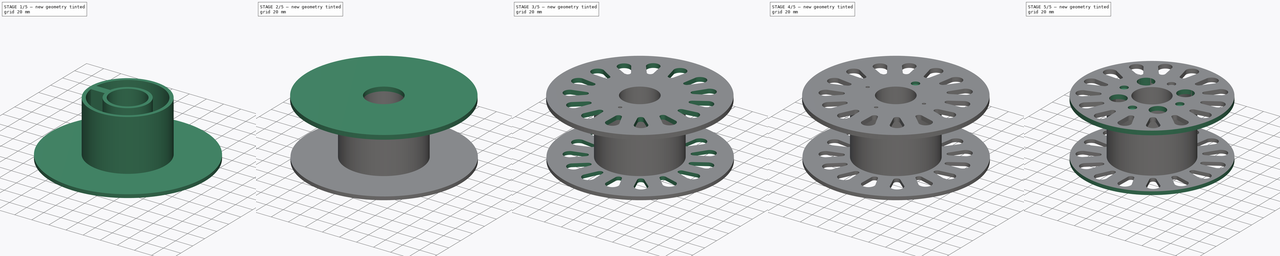
[diagram: build sequence overview — one tinted view per stage of 5, left to right]
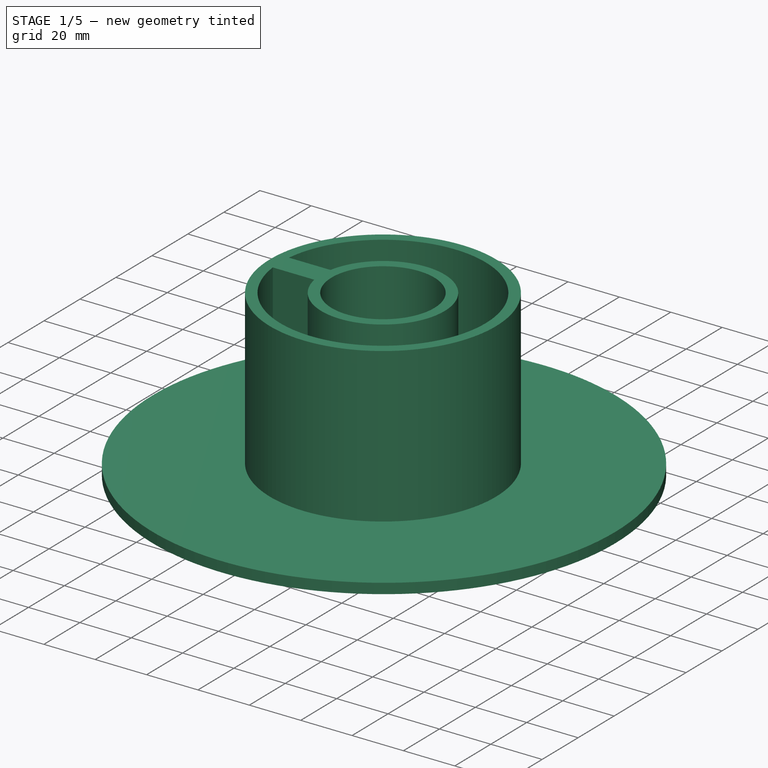
[diagram: stage 1 of 5 — iso view after this stage's code; geometry added in this stage tinted green]
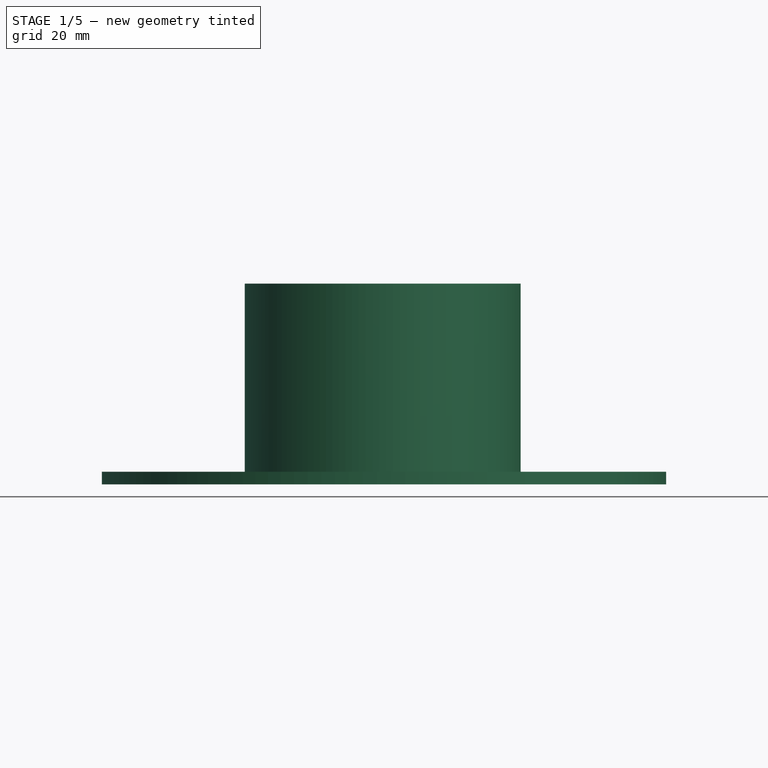
[diagram: stage 1 of 5 — front view after this stage's code; geometry added in this stage tinted green]
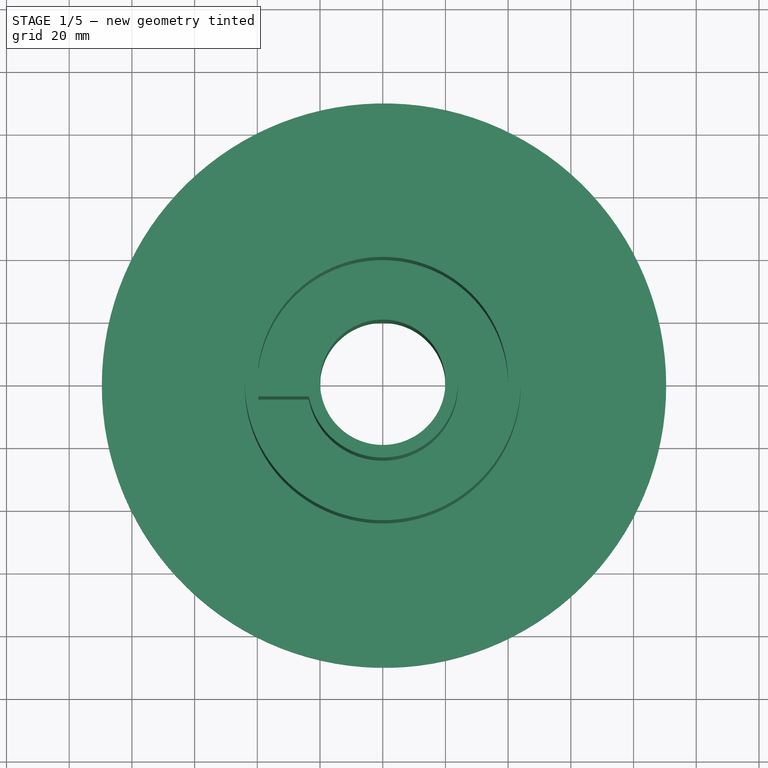
[diagram: stage 1 of 5 — top view after this stage's code; geometry added in this stage tinted green]
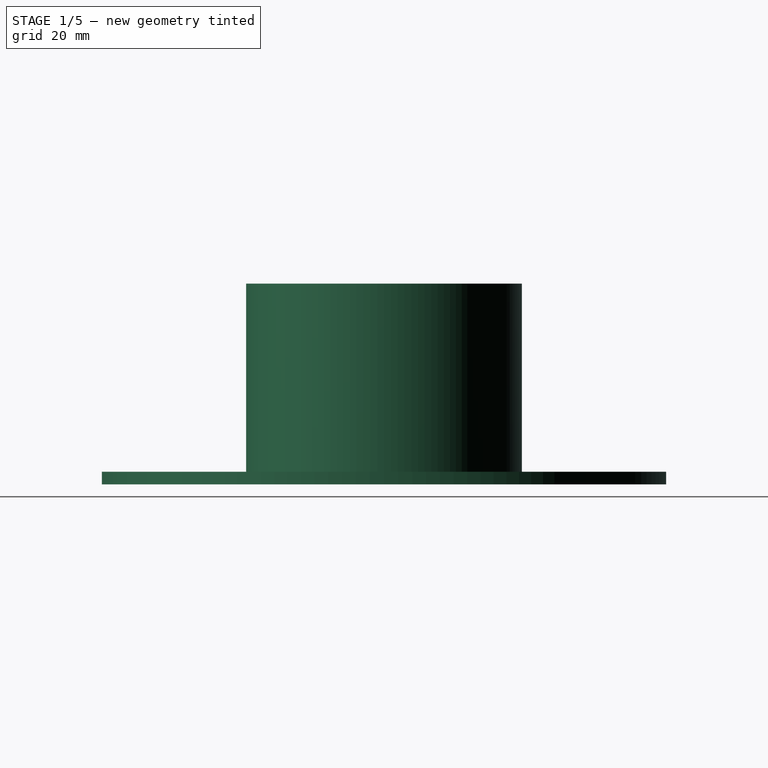
[diagram: stage 1 of 5 — right view after this stage's code; geometry added in this stage tinted green]
FCSTD DOCUMENT  (FreeCAD 0.16R6703 (Git))
Label: Spool Holder 60
License: FreeArt
LicenseURL: http://artlibre.org/licence/lal
objects: Sketcher::SketchObject×12, PartDesign::PolarPattern×7, PartDesign::Pocket×7, PartDesign::Pad×5
note: 43 computed .brp shape members not serialized (recipe doc carries the construction recipe); baked Part::Feature solids carry a one-line shape summary decoded from their .brp

FEATURE [Sketcher::SketchObject] Sketch
  sketch-geometry (2):
    g0: Circle CenterX=0 CenterY=0 CenterZ=0 NormalX=0 NormalY=0 NormalZ=1 Radius=20
    g1: Circle CenterX=0.405422 CenterY=0 CenterZ=0 NormalX=0 NormalY=0 NormalZ=1 Radius=90
  constraints (4):
    c: Coincident(g0,g-1)
    c: PointOnObject(g1,g-1)
    c: Radius(g1) = 90
    c: Radius(g0) = 20
FEATURE [PartDesign::Pad] Pad
  Length = 4
  Length2 = 100
  Sketch = -> Sketch
  Type = 0
FEATURE [Sketcher::SketchObject] Sketch001
  Placement = pos=(0,0,4) rot=(0,0,1;0rad)
  Support = -> Pad [Face4]
  sketch-geometry (2):
    g0: Circle CenterX=0 CenterY=0 CenterZ=0 NormalX=0 NormalY=0 NormalZ=1 Radius=20
    g1: Circle CenterX=0 CenterY=0 CenterZ=0 NormalX=0 NormalY=0 NormalZ=1 Radius=24
  constraints (4):
    c: Coincident(g0,g-1)
    c: Coincident(g1,g-1)
    c: Radius(g0) = 20
    c: Radius(g1) = 24
FEATURE [PartDesign::Pad] Pad001
  Length = 60
  Length2 = 100
  Sketch = -> Sketch001
  Type = 0
FEATURE [Sketcher::SketchObject] Sketch002
  Placement = pos=(0,0,4) rot=(0,0,1;0rad)
  Support = -> Pad001 [Face3]
  sketch-geometry (2):
    g0: Circle CenterX=0 CenterY=0 CenterZ=0 NormalX=0 NormalY=0 NormalZ=1 Radius=40
    g1: Circle CenterX=0 CenterY=0 CenterZ=0 NormalX=0 NormalY=0 NormalZ=1 Radius=44
  constraints (3):
    c: Coincident(g1,g-1)
    c: Radius(g0) = 40
    c: Radius(g1) = 44
FEATURE [PartDesign::Pad] Pad002
  Length = 60
  Length2 = 100
  Sketch = -> Sketch002
  Type = 0
FEATURE [Sketcher::SketchObject] Sketch003
  Placement = pos=(0,0,4) rot=(0,0,1;0rad)
  Support = -> Pad002 [Face10]
  sketch-geometry (4):
    g0: LineSegment StartX=-41.7162 StartY=4.5 StartZ=0 EndX=-21.7162 EndY=4.5 EndZ=0
    g1: LineSegment StartX=-21.7162 StartY=4.5 StartZ=0 EndX=-21.7162 EndY=-4.5 EndZ=0
    g2: LineSegment StartX=-21.7162 StartY=-4.5 StartZ=0 EndX=-41.7162 EndY=-4.5 EndZ=0
    g3: LineSegment StartX=-41.7162 StartY=-4.5 StartZ=0 EndX=-41.7162 EndY=4.5 EndZ=0
  constraints (12):
    c: Coincident(g0,g1)
    c: Coincident(g1,g2)
    c: Coincident(g2,g3)
    c: Coincident(g3,g0)
    c: Horizontal(g0)
    c: Horizontal(g2)
    c: Vertical(g1)
    c: Vertical(g3)
    c: Symmetric(g1,g0,g-1)
    c: DistanceX(g2,g2) = 20
    c: DistanceX(g1,g-1) = 21.7162
    c: DistanceY(g3,g3) = 9
FEATURE [PartDesign::Pad] Pad003
  Length = 60
  Length2 = 100
  Sketch = -> Sketch003
  Type = 0
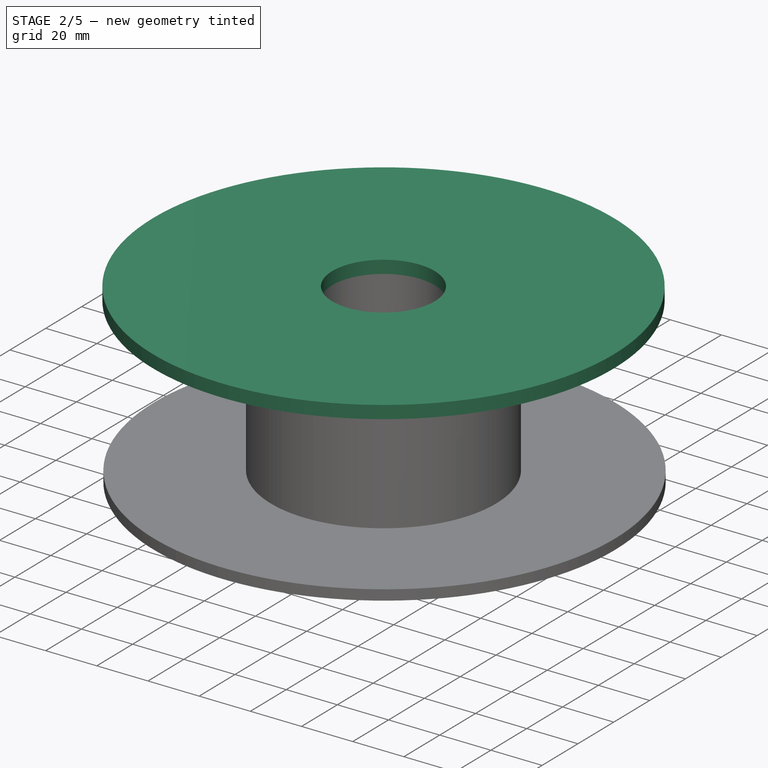
[diagram: stage 2 of 5 — iso view after this stage's code; geometry added in this stage tinted green]
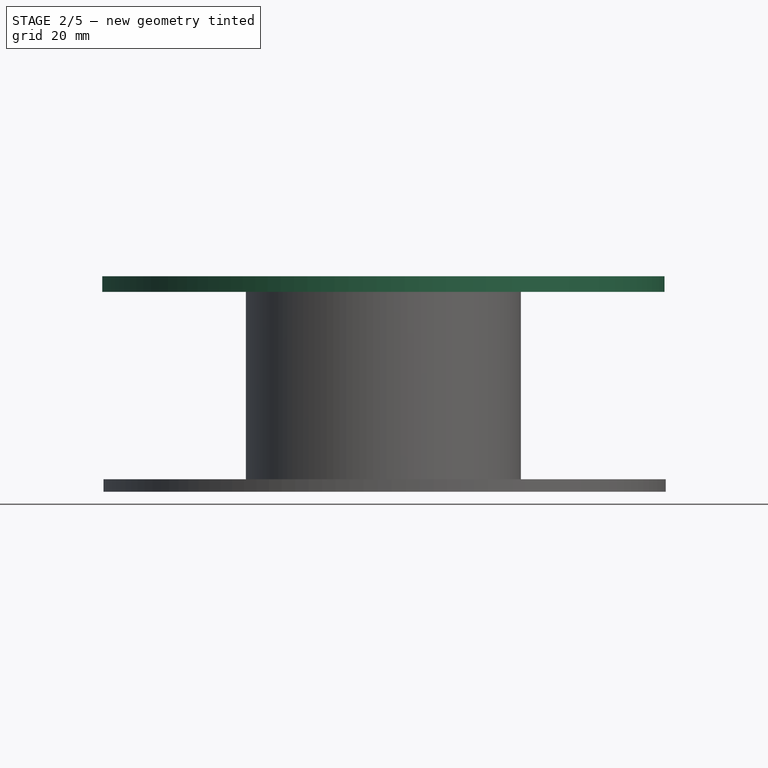
[diagram: stage 2 of 5 — front view after this stage's code; geometry added in this stage tinted green]
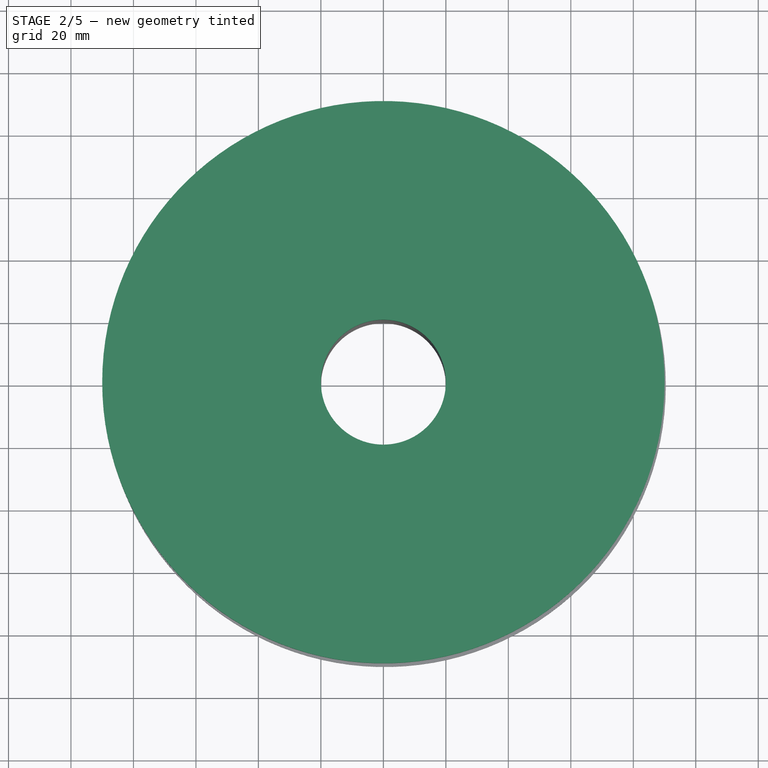
[diagram: stage 2 of 5 — top view after this stage's code; geometry added in this stage tinted green]
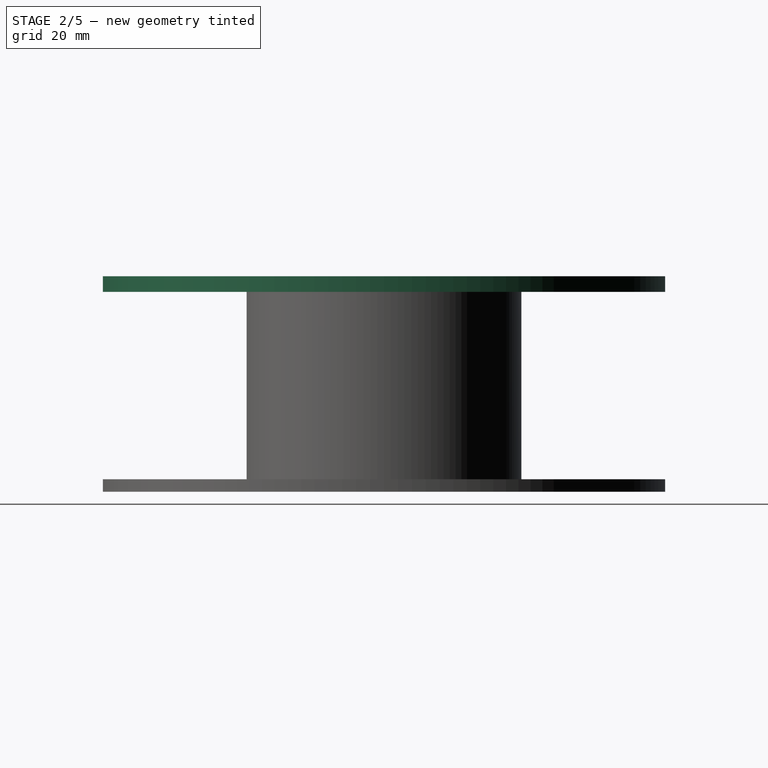
[diagram: stage 2 of 5 — right view after this stage's code; geometry added in this stage tinted green]
FEATURE [PartDesign::PolarPattern] PolarPattern
  Angle = 360
  Axis = -> Sketch003 [N_Axis]
  Occurrences = 4
  Originals = -> [Pad003]
FEATURE [Sketcher::SketchObject] Sketch004
  Placement = pos=(0,0,64) rot=(0,0,1;0rad)
  Support = -> PolarPattern [Face6]
  sketch-geometry (1):
    g0: Circle CenterX=0 CenterY=33 CenterZ=0 NormalX=0 NormalY=0 NormalZ=1 Radius=2
  constraints (3):
    c: PointOnObject(g0,g-2)
    c: DistanceY(g-1,g0) = 33
    c: Radius(g0) = 2
FEATURE [PartDesign::Pocket] Pocket
  Length = 5
  Sketch = -> Sketch004
  Type = 1
FEATURE [PartDesign::PolarPattern] PolarPattern001
  Angle = 360
  Axis = -> Sketch004 [N_Axis]
  Occurrences = 4
  Originals = -> [Pocket]
FEATURE [Sketcher::SketchObject] Sketch005
  Placement = pos=(0,0,64) rot=(0,0,1;0rad)
  Support = -> PolarPattern001 [Face10]
  sketch-geometry (2):
    g0: Circle CenterX=0 CenterY=0 CenterZ=0 NormalX=0 NormalY=0 NormalZ=1 Radius=20
    g1: Circle CenterX=0 CenterY=0 CenterZ=0 NormalX=0 NormalY=0 NormalZ=1 Radius=90
  constraints (4):
    c: Coincident(g0,g-1)
    c: Coincident(g1,g-1)
    c: Radius(g0) = 20
    c: Radius(g1) = 90
FEATURE [PartDesign::Pad] Pad004
  Length = 5
  Length2 = 100
  Sketch = -> Sketch005
  Type = 0
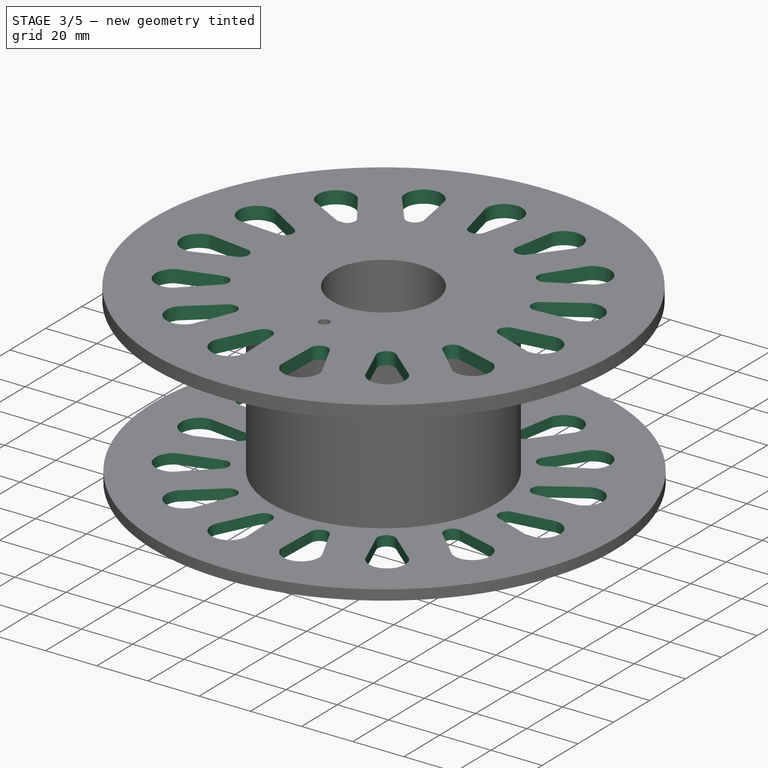
[diagram: stage 3 of 5 — iso view after this stage's code; geometry added in this stage tinted green]
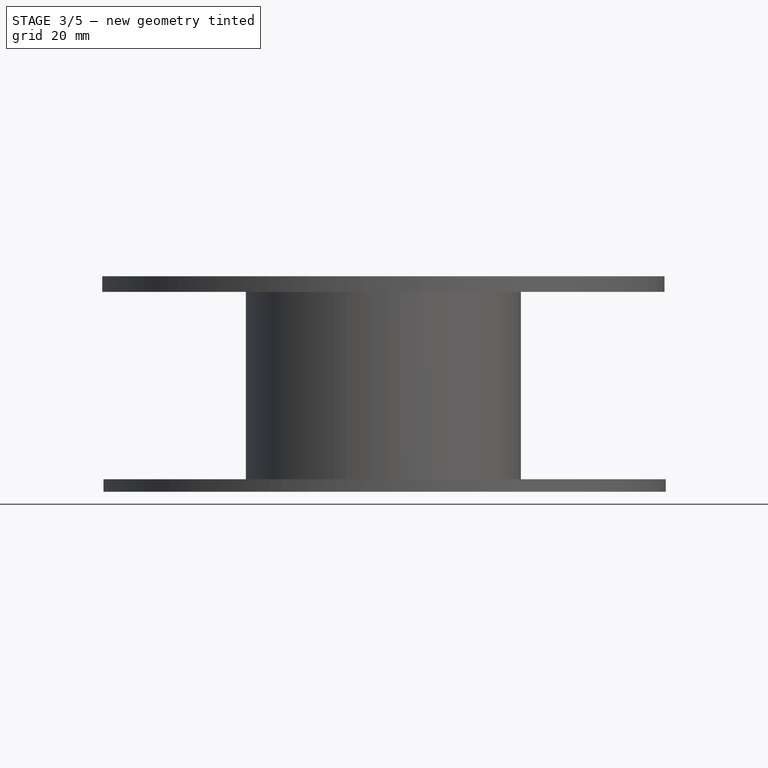
[diagram: stage 3 of 5 — front view after this stage's code; geometry added in this stage tinted green]
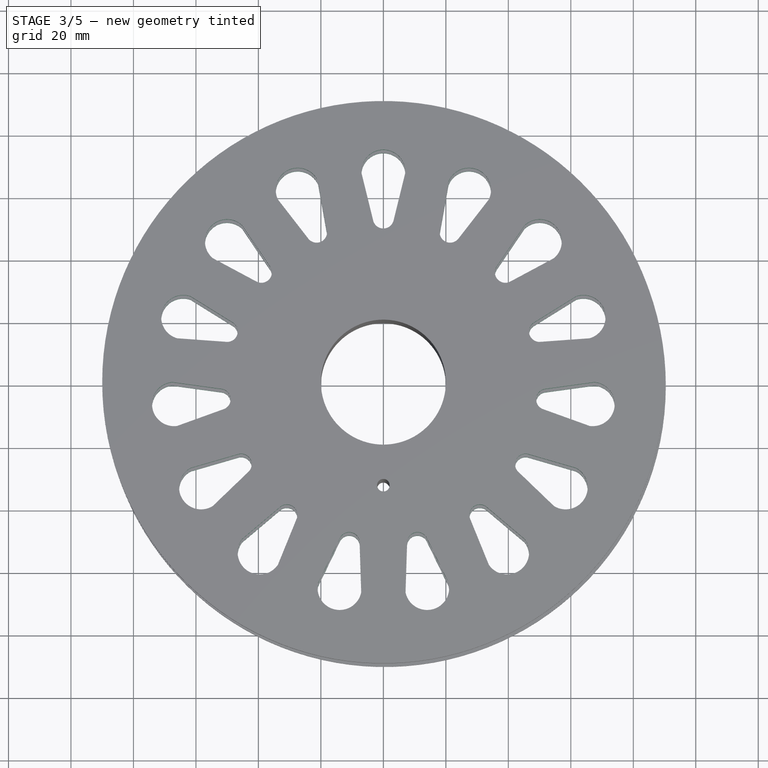
[diagram: stage 3 of 5 — top view after this stage's code; geometry added in this stage tinted green]
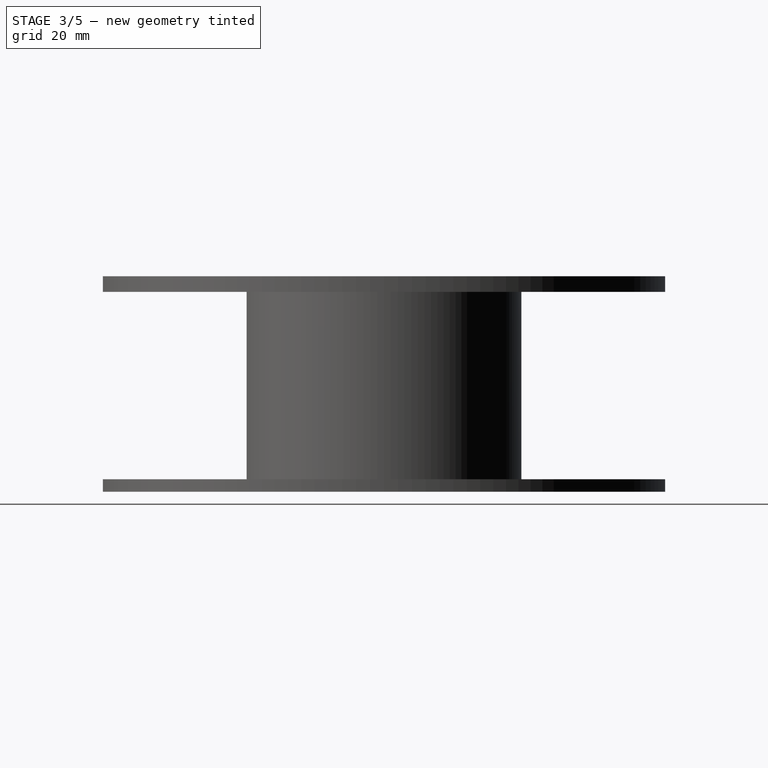
[diagram: stage 3 of 5 — right view after this stage's code; geometry added in this stage tinted green]
FEATURE [Sketcher::SketchObject] Sketch006
  Placement = pos=(0,0,69) rot=(0,0,1;0rad)
  Support = -> Pad004 [Face3]
  sketch-geometry (6):
    g0: Circle [constr] CenterX=0 CenterY=0 CenterZ=0 NormalX=0 NormalY=0 NormalZ=1 Radius=75
    g1: Circle [constr] CenterX=0 CenterY=0 CenterZ=0 NormalX=0 NormalY=0 NormalZ=1 Radius=80
    g2: LineSegment StartX=-7.05009 StartY=67.1304 StartZ=0 EndX=-3.26333 EndY=51.7578 EndZ=0
    g3: LineSegment StartX=7.05009 StartY=67.1304 StartZ=0 EndX=3.26333 EndY=51.7578 EndZ=0
    g4: ArcOfCircle CenterX=0 CenterY=67.3615 CenterZ=0 NormalX=0 NormalY=0 NormalZ=1 Radius=7.05388 StartAngle=6.25042 EndAngle=9.45754
    g5: ArcOfCircle CenterX=0 CenterY=52.5487 CenterZ=0 NormalX=0 NormalY=0 NormalZ=1 Radius=3.35781 StartAngle=3.37938 EndAngle=6.04539
  constraints (12):
    c: Coincident(g0,g-1)
    c: Radius(g0) = 75
    c: PointOnObject(g1,g-2)
    c: Coincident(g1,g-1)
    c: Radius(g1) = 80
    c: Symmetric(g2,g3,g-2)
    c: Symmetric(g2,g3,g-2)
    c: Coincident(g4,g3)
    c: Coincident(g5,g3)
    c: PointOnObject(g5,g-2)
    c: Coincident(g5,g2)
    c: Coincident(g2,g4)
FEATURE [PartDesign::Pocket] Pocket001
  Length = 5
  Sketch = -> Sketch006
  Type = 1
FEATURE [PartDesign::PolarPattern] PolarPattern002
  Angle = 360
  Axis = -> Sketch006 [N_Axis]
  Occurrences = 15
  Originals = -> [Pocket001]
FEATURE [Sketcher::SketchObject] Sketch007
  Placement = pos=(0,0,0) rot=(1,0,0;3.14159rad)
  Support = -> PolarPattern002 [Face129]
  sketch-geometry (1):
    g0: Circle CenterX=0 CenterY=33 CenterZ=0 NormalX=0 NormalY=0 NormalZ=1 Radius=2
  constraints (3):
    c: PointOnObject(g0,g-2)
    c: DistanceY(g-1,g0) = 33
    c: Radius(g0) = 2
FEATURE [PartDesign::Pocket] Pocket002
  Length = 5
  Sketch = -> Sketch007
  Type = 1
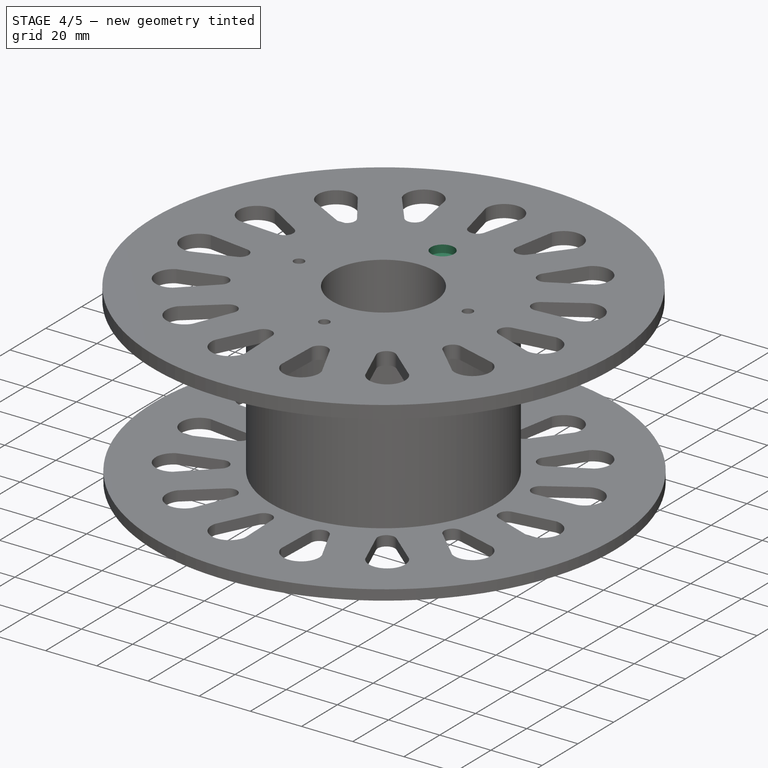
[diagram: stage 4 of 5 — iso view after this stage's code; geometry added in this stage tinted green]
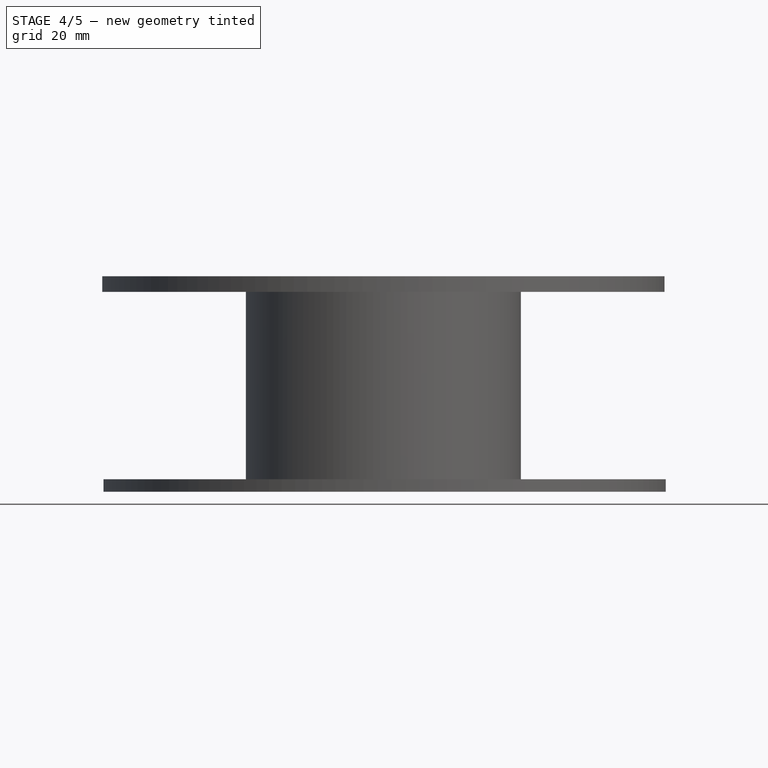
[diagram: stage 4 of 5 — front view after this stage's code; geometry added in this stage tinted green]
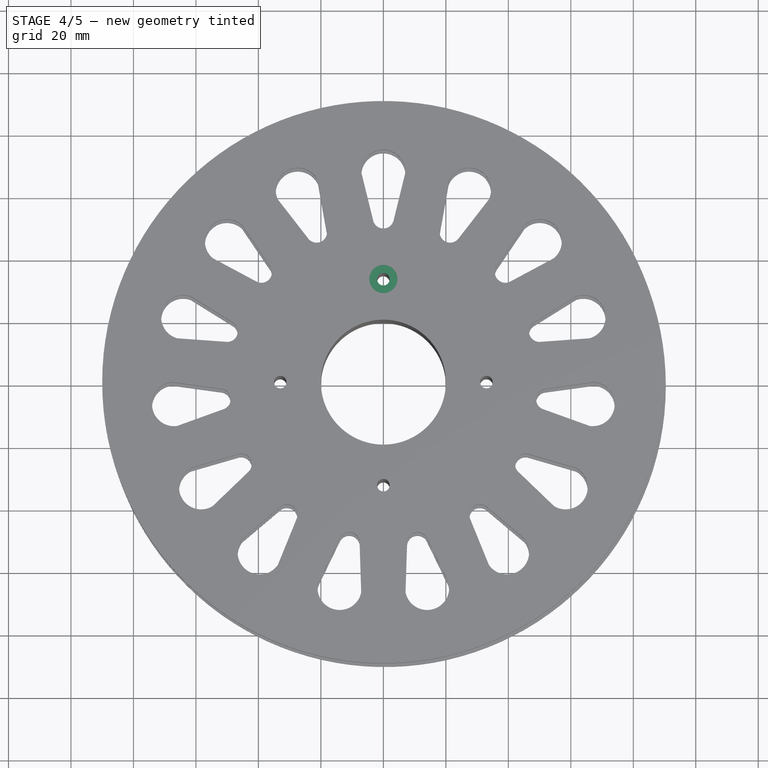
[diagram: stage 4 of 5 — top view after this stage's code; geometry added in this stage tinted green]
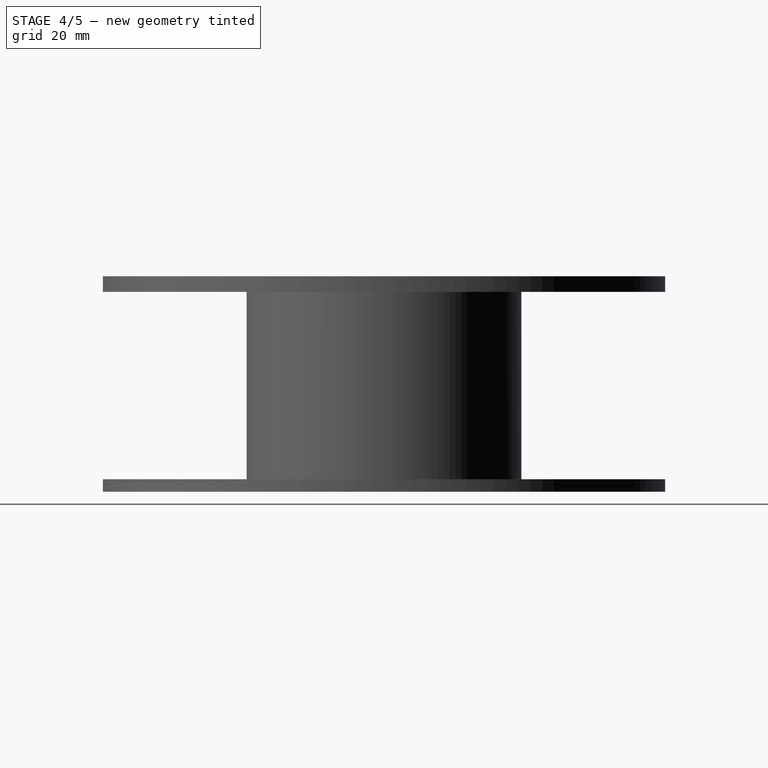
[diagram: stage 4 of 5 — right view after this stage's code; geometry added in this stage tinted green]
FEATURE [PartDesign::PolarPattern] PolarPattern003
  Angle = 360
  Axis = -> Sketch007 [N_Axis]
  Occurrences = 4
  Originals = -> [Pocket002]
FEATURE [Sketcher::SketchObject] Sketch008
  Placement = pos=(0,0,0) rot=(1,0,0;3.14159rad)
  Support = -> PolarPattern003 [Face69]
  sketch-geometry (7):
    g0: LineSegment StartX=2.25 StartY=29.1029 StartZ=0 EndX=4.5 EndY=33 EndZ=0
    g1: LineSegment StartX=4.5 StartY=33 StartZ=0 EndX=2.25 EndY=36.8971 EndZ=0
    g2: LineSegment StartX=2.25 StartY=36.8971 StartZ=0 EndX=-2.25 EndY=36.8971 EndZ=0
    g3: LineSegment StartX=-2.25 StartY=36.8971 StartZ=0 EndX=-4.5 EndY=33 EndZ=0
    g4: LineSegment StartX=-4.5 StartY=33 StartZ=0 EndX=-2.25 EndY=29.1029 EndZ=0
    g5: LineSegment StartX=-2.25 StartY=29.1029 StartZ=0 EndX=2.25 EndY=29.1029 EndZ=0
    g6: Circle [constr] CenterX=0 CenterY=33 CenterZ=0 NormalX=0 NormalY=0 NormalZ=1 Radius=4.5
  constraints (17):
    c: Coincident(g0,g1)
    c: Coincident(g1,g2)
    c: Coincident(g2,g3)
    c: Coincident(g3,g4)
    c: Coincident(g4,g5)
    c: Coincident(g5,g0)
    c: Equal(g0, g1-g5) x5
    c: PointOnObject(g0,g6)
    c: PointOnObject(g1,g6)
    c: PointOnObject(g2,g6)
    c: PointOnObject(g3,g6)
    c: PointOnObject(g4,g6)
    c: PointOnObject(g5,g6)
    c: PointOnObject(g6,g-2)
    c: DistanceY(g-1,g6) = 33
    c: Parallel(g5,g-1)
    c: Radius(g6) = 4.5
FEATURE [PartDesign::Pocket] Pocket003
  Length = 3
  Sketch = -> Sketch008
  Type = 0
FEATURE [PartDesign::PolarPattern] PolarPattern004
  Angle = 360
  Axis = -> Sketch008 [N_Axis]
  Occurrences = 4
  Originals = -> [Pocket003]
FEATURE [Sketcher::SketchObject] Sketch009
  Placement = pos=(0,0,69) rot=(0,0,1;0rad)
  Support = -> PolarPattern004 [Face3]
  sketch-geometry (1):
    g0: Circle CenterX=0 CenterY=33 CenterZ=0 NormalX=0 NormalY=0 NormalZ=1 Radius=4.5
  constraints (3):
    c: PointOnObject(g0,g-2)
    c: DistanceY(g-1,g0) = 33
    c: Radius(g0) = 4.5
FEATURE [PartDesign::Pocket] Pocket004
  Length = 3
  Sketch = -> Sketch009
  Type = 0
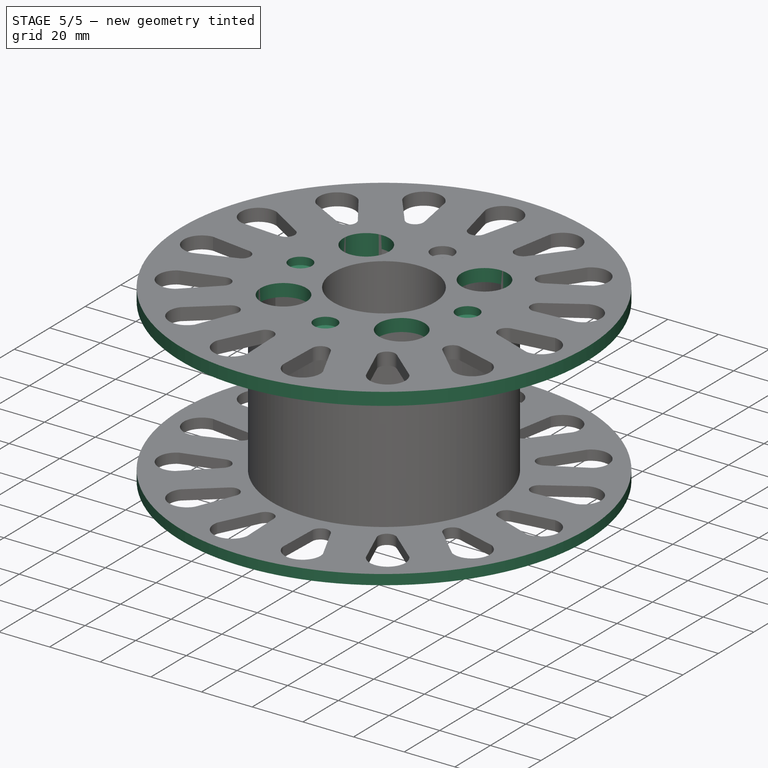
[diagram: stage 5 of 5 — iso view after this stage's code; geometry added in this stage tinted green]
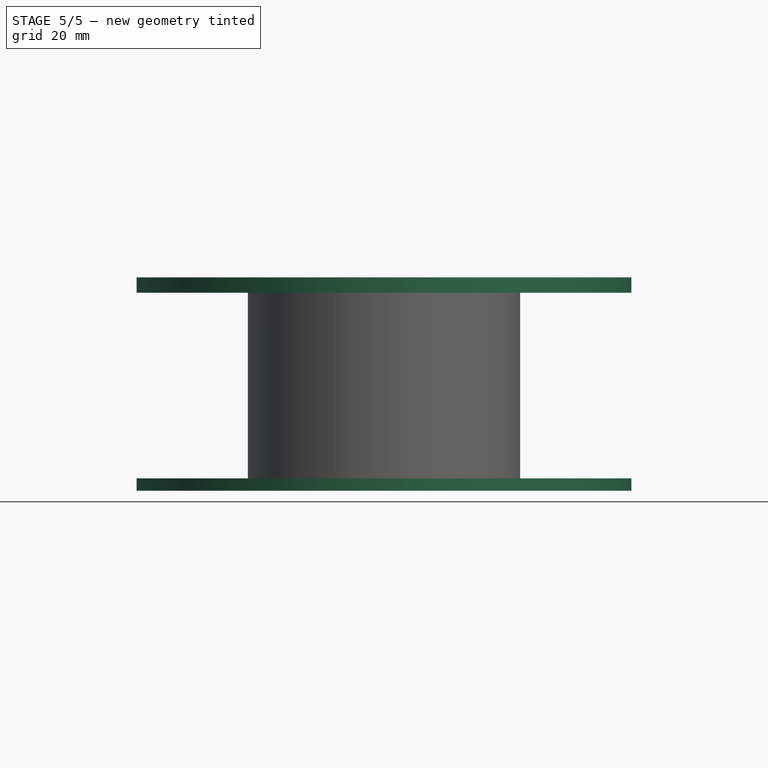
[diagram: stage 5 of 5 — front view after this stage's code; geometry added in this stage tinted green]
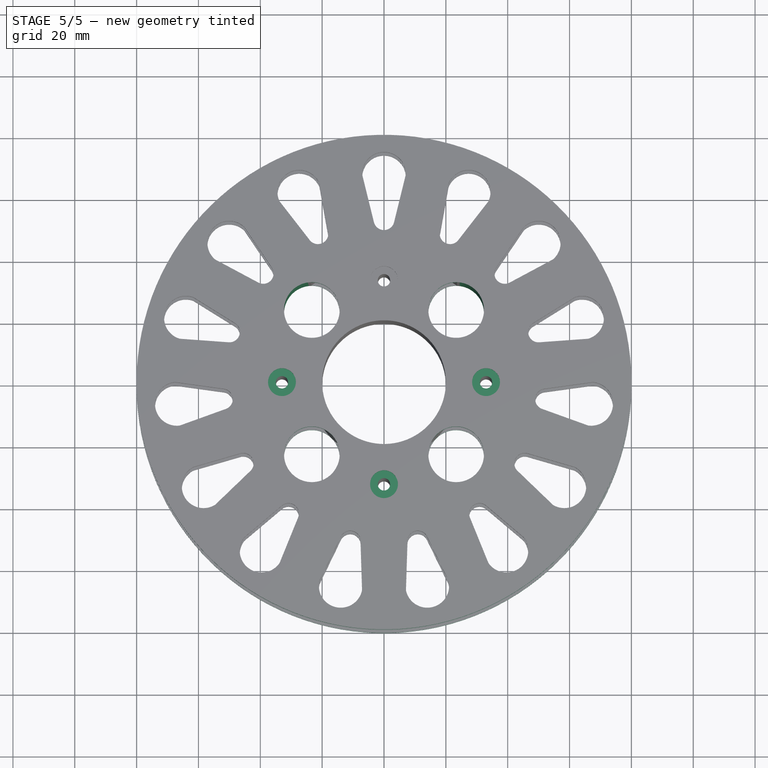
[diagram: stage 5 of 5 — top view after this stage's code; geometry added in this stage tinted green]
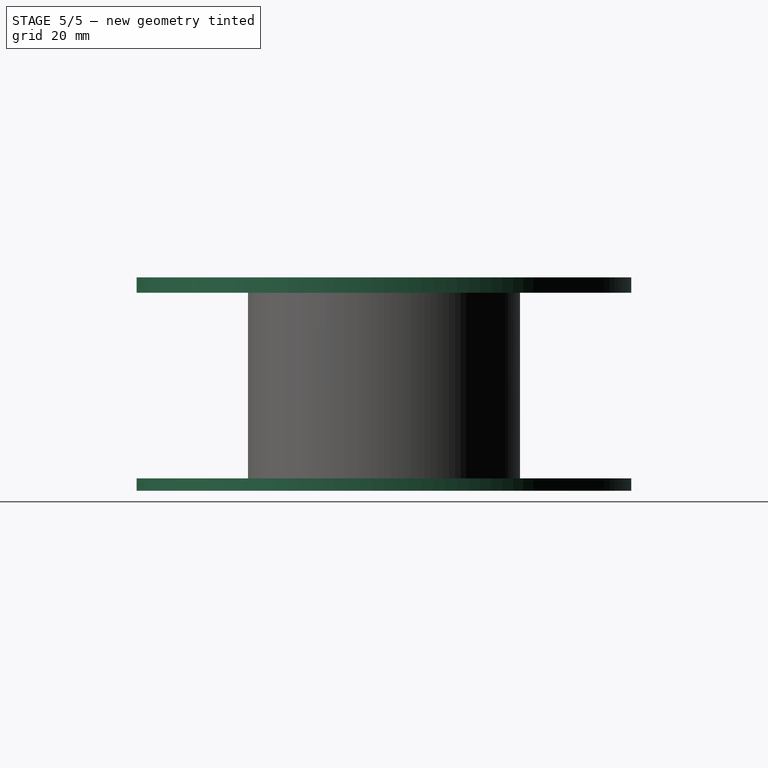
[diagram: stage 5 of 5 — right view after this stage's code; geometry added in this stage tinted green]
FEATURE [PartDesign::PolarPattern] PolarPattern005
  Angle = 360
  Axis = -> Sketch009 [N_Axis]
  Occurrences = 4
  Originals = -> [Pocket004]
FEATURE [Sketcher::SketchObject] Sketch010
  Placement = pos=(0,0,69) rot=(0,0,1;0rad)
  Support = -> PolarPattern005 [Face3]
  sketch-geometry (3):
    g0: Circle [constr] CenterX=0 CenterY=0 CenterZ=0 NormalX=0 NormalY=0 NormalZ=1 Radius=33
    g1: LineSegment [constr] StartX=0 StartY=0 StartZ=0 EndX=35.017 EndY=35.017 EndZ=0
    g2: Circle CenterX=23.3345 CenterY=23.3345 CenterZ=0 NormalX=0 NormalY=0 NormalZ=1 Radius=9
  constraints (7):
    c: Coincident(g0,g-1)
    c: Radius(g0) = 33
    c: Coincident(g1,g-1)
    c: Angle(g-1,g1) = 0.785398
    c: PointOnObject(g2,g0)
    c: PointOnObject(g2,g1)
    c: Radius(g2) = 9
FEATURE [PartDesign::Pocket] Pocket005
  Length = 5
  Sketch = -> Sketch010
  Type = 1
FEATURE [PartDesign::PolarPattern] PolarPattern006
  Angle = 360
  Axis = -> Sketch010 [N_Axis]
  Occurrences = 4
  Originals = -> [Pocket005]
FEATURE [Sketcher::SketchObject] Sketch011
  Placement = pos=(0,0,69) rot=(0,0,1;0rad)
  Support = -> PolarPattern006 [Face3]
  sketch-geometry (2):
    g0: Circle CenterX=0 CenterY=0 CenterZ=0 NormalX=0 NormalY=0 NormalZ=1 Radius=80
    g1: Circle CenterX=0 CenterY=0 CenterZ=0 NormalX=0 NormalY=0 NormalZ=1 Radius=97.871
  constraints (3):
    c: Coincident(g0,g-1)
    c: Coincident(g1,g-1)
    c: Radius(g0) = 80
FEATURE [PartDesign::Pocket] Pocket006
  Length = 5
  Sketch = -> Sketch011
  Type = 1
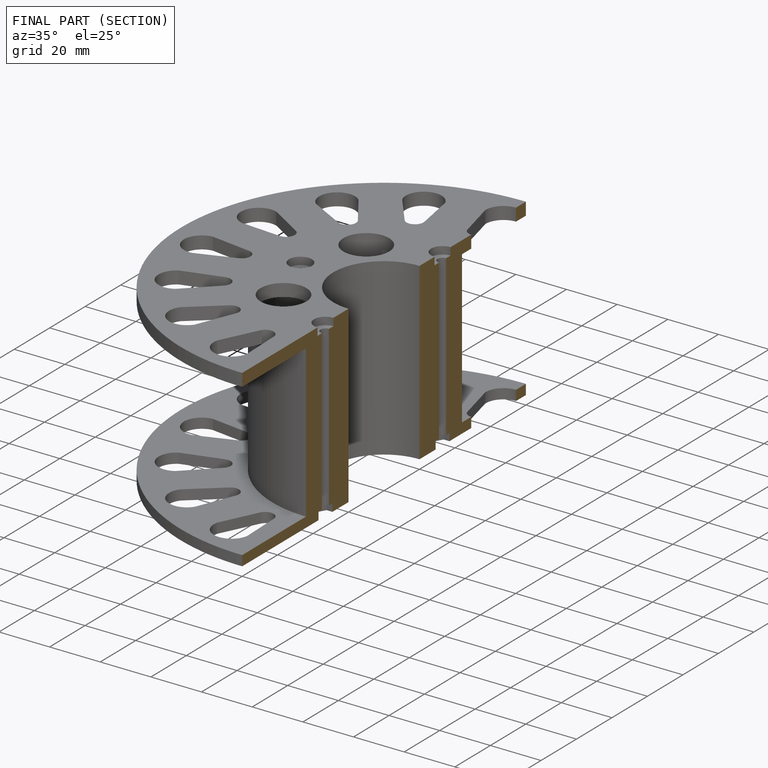
[diagram: finished part — half-section view (interior)]
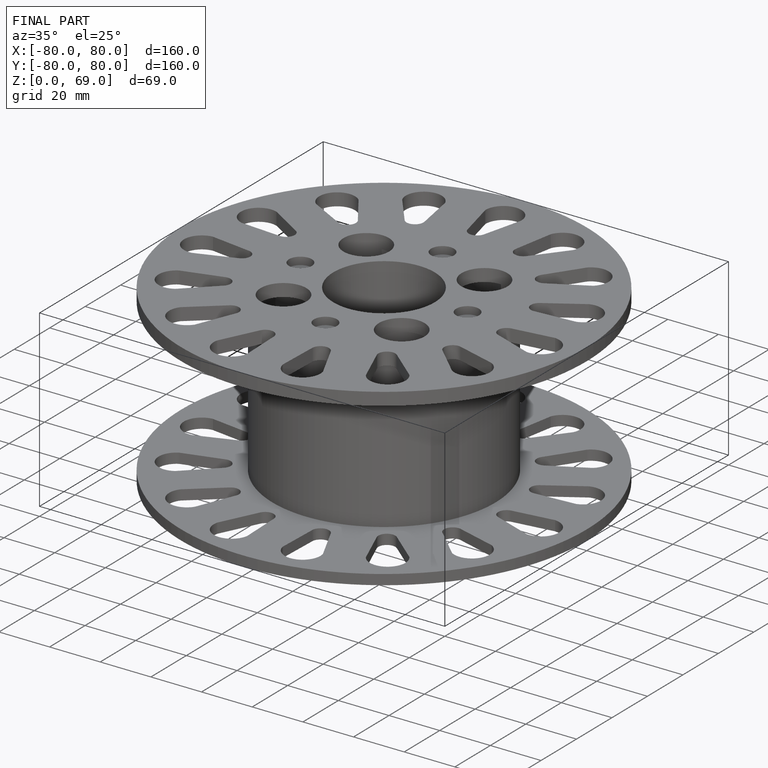
[diagram: finished part — iso view with bounding-box wireframe]
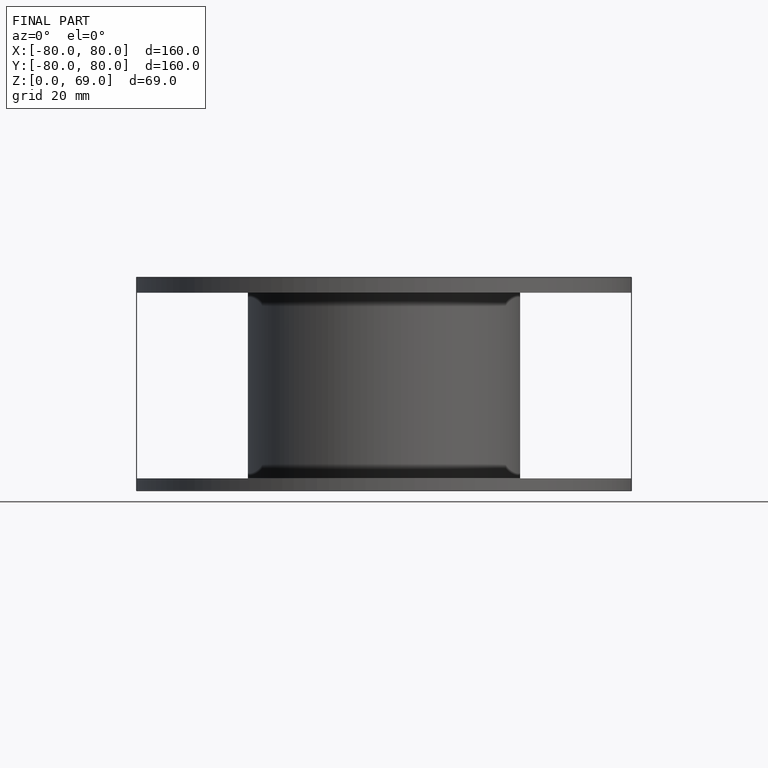
[diagram: finished part — front view with bounding-box wireframe]
